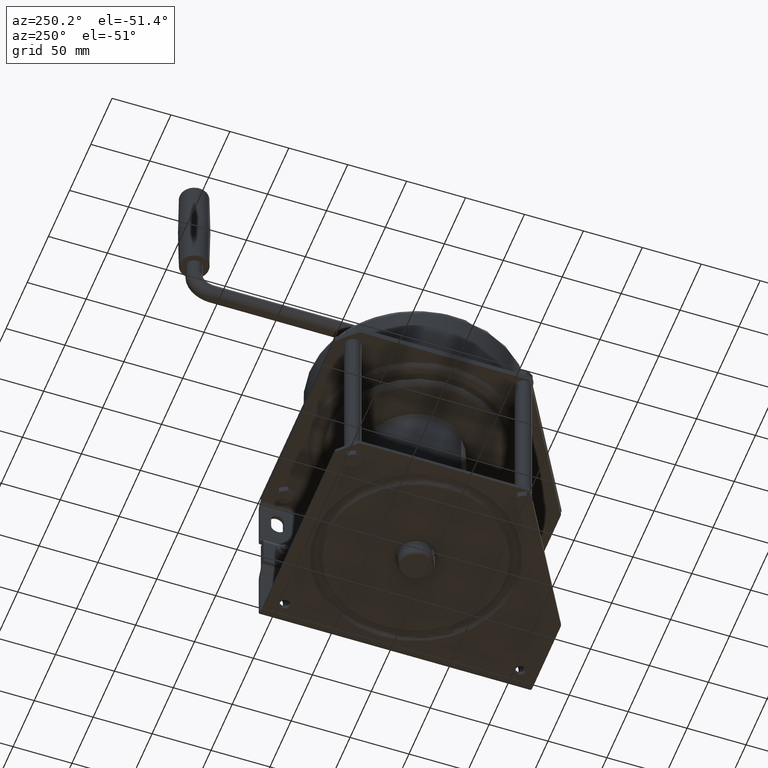
[diagram: clean part render]
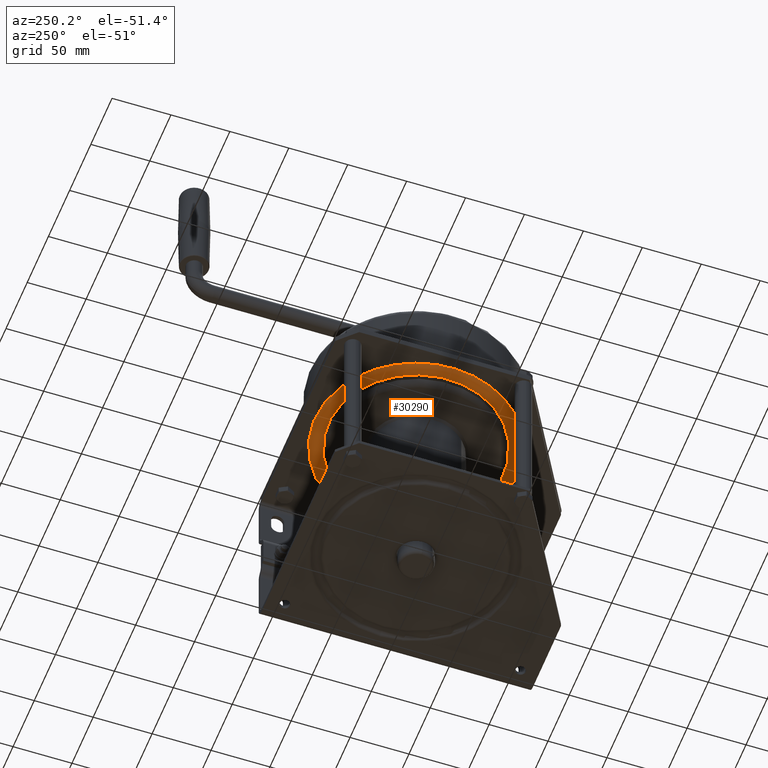
[diagram: same view with one face highlighted and labeled with its STEP entity id]
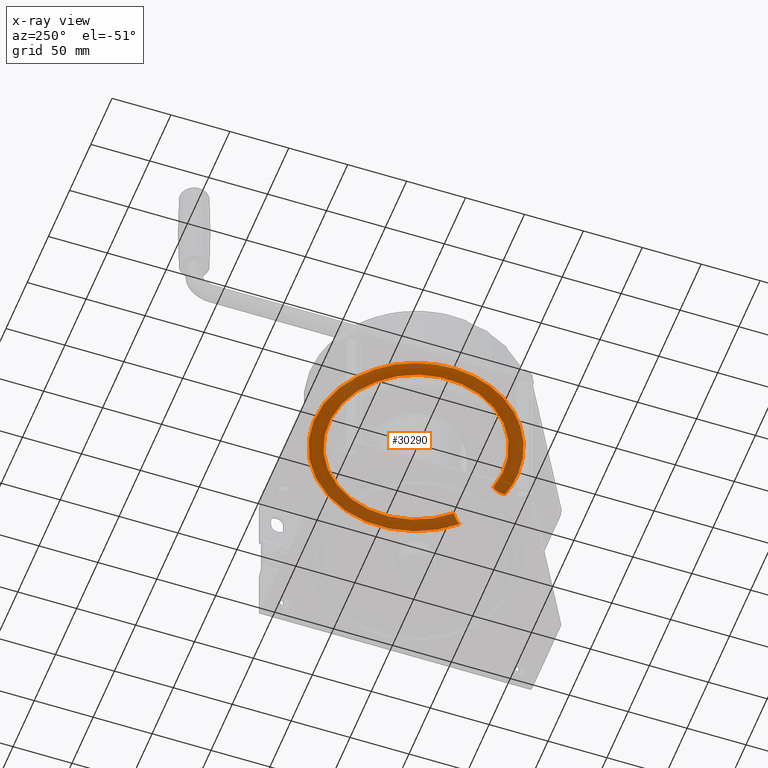
[diagram: x-ray of the same camera — body ghosted, the highlighted face saturated]
A machine part, auxiliary view. The second image highlights one B-rep face of the part: STEP entity #30290.
The next image is the same camera in x-ray: the body ghosted, the highlighted face saturated — about 39% of this face is hidden behind the body in this view.
In plain terms, the highlighted toroidal blend (fillet) surface has major radius 80 mm and minor (blend) radius 8 mm.
Its self-contained STEP definition (entity closure, byte-faithful):
#11730=CARTESIAN_POINT('',(-17.7310738179768,141.666664881784,
-71.8826067004219));
#11740=VERTEX_POINT('',#11730);
#11770=CARTESIAN_POINT('',(-17.4494110364851,143.251790071359,
-70.8142183877332));
#11780=CARTESIAN_POINT('',(-17.4797095990483,143.027668180225,
-70.9291679604591));
#11790=CARTESIAN_POINT('',(-17.5127375604239,142.809125787046,
-71.0544650633126));
#11800=CARTESIAN_POINT('',(-17.641144159681,142.045076566166,
-71.5415585136949));
#11810=CARTESIAN_POINT('',(-17.7509839322219,141.540439426602,
-71.9581526235615));
#11820=CARTESIAN_POINT('',(-17.9998614668436,140.648677941406,
-72.9018127497022));
#11830=CARTESIAN_POINT('',(-18.1379403264259,140.264988910131,
-73.4252414964462));
#11840=CARTESIAN_POINT('',(-18.4350968509748,139.639518396552,
-74.5513529116761));
#11850=CARTESIAN_POINT('',(-18.5930296544494,139.400147062889,
-75.1496960906125));
#11860=CARTESIAN_POINT('',(-18.9204040818879,139.079063886052,
-76.3895995869877));
#11870=CARTESIAN_POINT('',(-19.0885842550462,138.998588986126,
-77.0263820600299));
#11880=CARTESIAN_POINT('',(-19.4262481365162,139.001448458459,
-78.304509295463));
#11890=CARTESIAN_POINT('',(-19.5944306729645,139.08477266771,
-78.9409292634706));
#11900=CARTESIAN_POINT('',(-19.9217967249815,139.411408773584,
-80.1793962015438));
#11910=CARTESIAN_POINT('',(-20.0797186413641,139.653462951148,
-80.7766712000824));
#11920=CARTESIAN_POINT('',(-20.3767891384021,140.283977637425,
-81.8999788823179));
#11930=CARTESIAN_POINT('',(-20.5147936430678,140.670003709072,
-82.4216864849412));
#11940=CARTESIAN_POINT('',(-20.7634055817012,141.565970629898,
-83.3613785624261));
#11950=CARTESIAN_POINT('',(-20.8730547589428,142.072460441627,
-83.7757420027862));
#11960=CARTESIAN_POINT('',(-20.9994629999071,142.829001509947,
-84.2533869875857));
#11970=CARTESIAN_POINT('',(-21.0309918189111,143.0378719962,
-84.3725156453458));
#11980=CARTESIAN_POINT('',(-21.0600252851529,143.251815989969,
-84.4822117488593));
#11990=B_SPLINE_CURVE_WITH_KNOTS('',3,(#11770,#11780,#11790,#11800,
#11810,#11820,#11830,#11840,#11850,#11860,#11870,#11880,#11890,#11900,
#11910,#11920,#11930,#11940,#11950,#11960,#11970,#11980),.UNSPECIFIED.,
.F.,.F.,(4,2,2,2,2,2,2,2,2,2,4),(2.89891703597038,3.58902922649579,
5.38386186552505,7.17868409120651,8.97350843534033,10.7683302842385,
12.5631604119399,14.357997235744,16.1527661252999,17.9475444589209,
18.6062883887698),.UNSPECIFIED.);
#12000=CARTESIAN_POINT('',(-20.7773640004484,141.666668661917,
-83.4141035381215));
#12010=VERTEX_POINT('',#12000);
#12020=EDGE_CURVE('',#11740,#12010,#11990,.T.);
#19070=CARTESIAN_POINT('',(-61.8500506245672,141.666668546665,
-59.7007767444537));
#19080=VERTEX_POINT('',#19070);
#19110=CARTESIAN_POINT('',(-52.6022065546735,143.251790071359,
-50.5187424325393));
#19120=CARTESIAN_POINT('',(-52.6866065235336,143.027668180207,
-50.6024565437868));
#19130=CARTESIAN_POINT('',(-52.7786030169456,142.809125787011,
-50.6937081488081));
#19140=CARTESIAN_POINT('',(-53.1362350193775,142.045076566117,
-51.0484582509817));
#19150=CARTESIAN_POINT('',(-53.4420962153212,141.540439426557,
-51.3518793392841));
#19160=CARTESIAN_POINT('',(-54.1348910897916,140.648677941368,
-52.039243669773));
#19170=CARTESIAN_POINT('',(-54.5191542517538,140.264988910097,
-52.4205378432708));
#19180=CARTESIAN_POINT('',(-55.3458170825571,139.639518396532,
-53.2409386500425));
#19190=CARTESIAN_POINT('',(-55.7850310739539,139.400147062877,
-53.6768840594046));
#19200=CARTESIAN_POINT('',(-56.6951317863233,139.079063886049,
-54.5803503782901));
#19210=CARTESIAN_POINT('',(-57.1625114980761,138.998588986126,
-55.044389917172));
#19220=CARTESIAN_POINT('',(-58.100570212532,139.001448458459,
-55.9758790342188));
#19230=CARTESIAN_POINT('',(-58.5676348041221,139.084772667725,
-56.4397393673033));
#19240=CARTESIAN_POINT('',(-59.4764956083128,139.41140877366,
-57.3424801538034));
#19250=CARTESIAN_POINT('',(-59.9147899719369,139.65346295127,
-57.7778820445099));
#19260=CARTESIAN_POINT('',(-60.7390677125182,140.28397763763,
-58.5968064827954));
#19270=CARTESIAN_POINT('',(-61.1218774973918,140.670003709303,
-58.9771756909716));
#19280=CARTESIAN_POINT('',(-61.8113687388823,141.565970630175,
-59.662325984225));
#19290=CARTESIAN_POINT('',(-62.115393415996,142.072460441924,
-59.9644666773837));
#19300=CARTESIAN_POINT('',(-62.4658419862668,142.829001510162,
-60.3127619176331));
#19310=CARTESIAN_POINT('',(-62.5532460206554,143.037871996311,
-60.3996310046738));
#19320=CARTESIAN_POINT('',(-62.6337288998319,143.251815989969,
-60.4796227757148));
#19330=B_SPLINE_CURVE_WITH_KNOTS('',3,(#19110,#19120,#19130,#19140,
#19150,#19160,#19170,#19180,#19190,#19200,#19210,#19220,#19230,#19240,
#19250,#19260,#19270,#19280,#19290,#19300,#19310,#19320),.UNSPECIFIED.,
.F.,.F.,(4,2,2,2,2,2,2,2,2,2,4),(2.89891703591418,3.58902922649574,
5.38386186552498,7.17868409120644,8.97350843531208,10.7683302841821,
12.5631604120536,14.3579972360276,16.1527661255836,17.9475444592046,
18.6062883887144),.UNSPECIFIED.);
#19340=CARTESIAN_POINT('',(-53.3866265194609,141.666664983133,
-51.2968636491051));
#19350=VERTEX_POINT('',#19340);
#19360=EDGE_CURVE('',#19350,#19080,#19330,.T.);
#25740=CARTESIAN_POINT('',(-53.3866265194609,141.666664983133,
-51.2968636491051));
#25750=CARTESIAN_POINT('',(-53.4055790043419,141.666664983935,
-51.2771390653176));
#25760=CARTESIAN_POINT('',(-53.4244778305635,141.666666666667,
-51.2574460613226));
#25770=CARTESIAN_POINT('',(-55.7721436525182,141.666666666667,
-48.8087124291369));
#25780=CARTESIAN_POINT('',(-57.9347485043187,141.666666666667,
-46.2215353729457));
#25790=CARTESIAN_POINT('',(-63.5077350658664,141.666666666667,
-38.5443365883381));
#25800=CARTESIAN_POINT('',(-66.473256061125,141.666666666667,
-33.1693310885746));
#25810=CARTESIAN_POINT('',(-71.014755494827,141.666666666667,
-21.8129043971983));
#25820=CARTESIAN_POINT('',(-72.5732439058237,141.666666666667,
-15.8752185880133));
#25830=CARTESIAN_POINT('',(-74.1944646316315,141.666666666667,
-3.75229453227779));
#25840=CARTESIAN_POINT('',(-74.2509533708559,141.666666666667,
2.38625643013575));
#25850=CARTESIAN_POINT('',(-72.8531056836585,141.666666666667,
14.5369628353748));
#25860=CARTESIAN_POINT('',(-71.4041525881767,141.666666666667,
20.5023239998728));
#25870=CARTESIAN_POINT('',(-67.0724148715279,141.666666666667,
31.9404048116648));
#25880=CARTESIAN_POINT('',(-64.2063124524975,141.666666666667,
37.3690746136914));
#25890=CARTESIAN_POINT('',(-57.2046408012302,141.666666666667,
47.3975460022311));
#25900=CARTESIAN_POINT('',(-53.0960361059574,141.666666666667,
51.9587263707093));
#25910=CARTESIAN_POINT('',(-43.8510800605702,141.666666666667,
59.9664995956312));
#25920=CARTESIAN_POINT('',(-38.7503324878727,141.666666666667,
63.3822532599678));
#25930=CARTESIAN_POINT('',(-27.8254369815711,141.666666666667,
68.8813715965062));
#25940=CARTESIAN_POINT('',(-22.0433625360402,141.666666666667,
70.9435583004972));
#25950=CARTESIAN_POINT('',(-10.1042402557254,141.666666666667,
73.5989308691772));
#25960=CARTESIAN_POINT('',(-3.9931718555799,141.666666666667,
74.1818904771451));
#25970=CARTESIAN_POINT('',(8.23266221522825,141.666666666667,
73.8317111347103));
#25980=CARTESIAN_POINT('',(14.300344279128,141.666666666667,
72.8999207799828));
#25990=CARTESIAN_POINT('',(26.0679042644669,141.666666666667,
69.5655278387792));
#26000=CARTESIAN_POINT('',(31.722463464607,141.666666666668,
67.175766523099));
#26010=CARTESIAN_POINT('',(37.01857603,141.666666666668,64.1180545078109
));
#26020=CARTESIAN_POINT('',(40.6928436478808,141.666666666668,
61.9967151095526));
#26030=CARTESIAN_POINT('',(44.1779692337604,141.666666666667,
59.5634723879239));
#26040=CARTESIAN_POINT('',(50.6929661085473,141.666666666667,
54.1269193252647));
#26050=CARTESIAN_POINT('',(53.7107828302228,141.666666666667,
51.1336681286476));
#26060=CARTESIAN_POINT('',(60.4119798736627,141.666666666667,
43.2352978939147));
#26070=CARTESIAN_POINT('',(63.7753715804122,141.666666666667,
38.0998723883917));
#26080=CARTESIAN_POINT('',(69.1624349817782,141.666666666667,
27.1192898805016));
#26090=CARTESIAN_POINT('',(71.1653602493342,141.666666666667,
21.3164208255949));
#26100=CARTESIAN_POINT('',(73.6984506567894,141.666666666667,
9.35075756397089));
#26110=CARTESIAN_POINT('',(74.2188604677717,141.666666666667,
3.23404500537859));
#26120=CARTESIAN_POINT('',(73.7436230483259,141.666666666667,
-8.98756674177154));
#26130=CARTESIAN_POINT('',(72.749806031824,141.666666666667,
-15.0453985843963));
#26140=CARTESIAN_POINT('',(69.2951995594292,141.666666666667,
-26.7782302299884));
#26150=CARTESIAN_POINT('',(66.8477143355198,141.666666666667,
-32.4080450559444));
#26160=CARTESIAN_POINT('',(60.6242465771009,141.666666666667,
-42.9371520153613));
#26170=CARTESIAN_POINT('',(56.8722315941672,141.666666666667,
-47.7958949045918));
#26180=CARTESIAN_POINT('',(48.2591319383173,141.666666666667,
-56.4796820174428));
#26190=CARTESIAN_POINT('',(43.4312176646451,141.666666666667,
-60.2712836133228));
#26200=CARTESIAN_POINT('',(32.9533286337599,141.666666666667,
-66.580600989979));
#26210=CARTESIAN_POINT('',(27.3437058724922,141.666666666667,
-69.0740185988192));
#26220=CARTESIAN_POINT('',(15.6395016428942,141.666666666667,
-72.6244055713593));
#26230=CARTESIAN_POINT('',(9.58999490290132,141.666666666667,
-73.6677018373297));
#26240=CARTESIAN_POINT('',(-2.62732436333692,141.666666666667,
-74.2428142174123));
#26250=CARTESIAN_POINT('',(-8.74808607466722,141.666666666667,
-73.772415483442));
#26260=CARTESIAN_POINT('',(-15.715969111468,141.666666666667,
-72.3567402617258));
#26270=CARTESIAN_POINT('',(-16.6862656493447,141.666666666667,
-72.139143648174));
#26280=CARTESIAN_POINT('',(-17.6780109046521,141.666666666667,
-71.8956785847278));
#26290=CARTESIAN_POINT('',(-17.7045152343861,141.666664882058,
-71.8891578288474));
#26300=CARTESIAN_POINT('',(-17.7310738179768,141.666664881784,
-71.8826067004219));
#26310=B_SPLINE_CURVE_WITH_KNOTS('',3,(#25740,#25750,#25760,#25770,
#25780,#25790,#25800,#25810,#25820,#25830,#25840,#25850,#25860,#25870,
#25880,#25890,#25900,#25910,#25920,#25930,#25940,#25950,#25960,#25970,
#25980,#25990,#26000,#26010,#26020,#26030,#26040,#26050,#26060,#26070,
#26080,#26090,#26100,#26110,#26120,#26130,#26140,#26150,#26160,#26170,
#26180,#26190,#26200,#26210,#26220,#26230,#26240,#26250,#26260,#26270,
#26280,#26290,#26300),.UNSPECIFIED.,.F.,.F.,(4,2,2,2,2,2,2,2,2,2,2,2,2,3
,2,2,2,2,2,2,2,2,2,2,2,2,2,4),(0.,0.0819332722406013,10.1386765569284,
28.3813745226905,46.6240724884525,64.8667704542146,83.1094684199767,
101.352166385739,119.594864351501,137.837562317263,156.080260283018,
174.322958248773,192.56565621404,210.808354179313,223.464534267814,
236.12071435631,254.363412322072,272.606110287834,290.848808253596,
309.091506219358,327.33420418512,345.576902150882,363.819600116644,
382.062298082406,400.304996048168,418.54769401393,421.515296849799,
421.597161795074),.UNSPECIFIED.);
#26320=EDGE_CURVE('',#19350,#11740,#26310,.T.);
#29590=CARTESIAN_POINT('',(0.,147.,0.));
#29600=DIRECTION('',(0.,1.,0.));
#29610=DIRECTION('',(1.,0.,0.));
#29620=AXIS2_PLACEMENT_3D('',#29590,#29600,#29610);
#29630=TOROIDAL_SURFACE('',#29620,80.,8.);
#29640=ORIENTED_EDGE('',*,*,#12020,.T.);
#29650=ORIENTED_EDGE('',*,*,#26320,.T.);
#29660=ORIENTED_EDGE('',*,*,#19360,.F.);
#29670=CARTESIAN_POINT('',(-61.8500506245672,141.666668546665,
-59.7007767444537));
#29680=CARTESIAN_POINT('',(-61.8688707113706,141.666668545755,
-59.6812791188783));
#29690=CARTESIAN_POINT('',(-61.8876286570385,141.666666666667,
-59.6618248737851));
#29700=CARTESIAN_POINT('',(-64.6657359402651,141.666666666667,
-56.7782506767159));
#29710=CARTESIAN_POINT('',(-67.225523048569,141.666666666667,
-53.7235144454945));
#29720=CARTESIAN_POINT('',(-73.7373821249944,141.666666666667,
-44.7529497315704));
#29730=CARTESIAN_POINT('',(-77.1805808870724,141.666666666667,
-38.5121534876717));
#29740=CARTESIAN_POINT('',(-82.453612253822,141.666666666667,
-25.3264655769469));
#29750=CARTESIAN_POINT('',(-84.2631375867042,141.666666666667,
-18.4323540647437));
#29760=CARTESIAN_POINT('',(-86.1454999780414,141.666666666667,
-4.35670355397023));
#29770=CARTESIAN_POINT('',(-86.2110877633501,141.666666666667,
2.77062790425829));
#29780=CARTESIAN_POINT('',(-84.5880787068772,141.666666666667,
16.8785358666872));
#29790=CARTESIAN_POINT('',(-82.9057323278247,141.666666666667,
23.8047806020343));
#29800=CARTESIAN_POINT('',(-77.8762505012661,141.666666666667,
37.085275247569));
#29810=CARTESIAN_POINT('',(-74.5484843780271,141.666666666667,
43.388379887511));
#29820=CARTESIAN_POINT('',(-66.4190031804692,141.666666666667,
55.0322091945865));
#29830=CARTESIAN_POINT('',(-61.6485960147715,141.666666666667,
60.3280916466898));
#29840=CARTESIAN_POINT('',(-50.9144884928508,141.666666666667,
69.6257344222326));
#29850=CARTESIAN_POINT('',(-44.9921268702147,141.666666666667,
73.591688063384));
#29860=CARTESIAN_POINT('',(-32.30747997202,141.666666666667,
79.976588888133));
#29870=CARTESIAN_POINT('',(-25.5940452634692,141.666666666667,
82.3709468160673));
#29880=CARTESIAN_POINT('',(-11.7318028001448,141.666666666667,
85.4540393157774));
#29890=CARTESIAN_POINT('',(-4.63638071781184,141.666666666667,
86.1309004142149));
#29900=CARTESIAN_POINT('',(9.55875626124258,141.666666666667,
85.7243151680632));
#29910=CARTESIAN_POINT('',(16.6038034565006,141.666666666667,
84.6424346475996));
#29920=CARTESIAN_POINT('',(30.2668488495381,141.666666666667,
80.770947085041));
#29930=CARTESIAN_POINT('',(36.8322285141039,141.666666666668,
77.996249749461));
#29940=CARTESIAN_POINT('',(42.9814239700035,141.666666666668,
74.4460100976973));
#29950=CARTESIAN_POINT('',(47.2475322663267,141.666666666668,
71.9829713244228));
#29960=CARTESIAN_POINT('',(51.294032064814,141.666666666667,
69.1577887188704));
#29970=CARTESIAN_POINT('',(58.8584462847747,141.666666666667,
62.8455310017536));
#29980=CARTESIAN_POINT('',(62.36236442327,141.666666666667,
59.3701353332578));
#29990=CARTESIAN_POINT('',(70.1429714082025,141.666666666667,
50.1995178697166));
#30000=CARTESIAN_POINT('',(74.0481287751655,141.666666666667,
44.2368924905493));
#30010=CARTESIAN_POINT('',(80.3029251714943,141.666666666667,
31.4875886854692));
#30020=CARTESIAN_POINT('',(82.6284759977804,141.666666666667,
24.7500098304653));
#30030=CARTESIAN_POINT('',(85.5695894702664,141.666666666667,
10.856951239366));
#30040=CARTESIAN_POINT('',(86.1738254266564,141.666666666667,
3.75497585345812));
#30050=CARTESIAN_POINT('',(85.6220381007559,141.666666666667,
-10.4352586837414));
#30060=CARTESIAN_POINT('',(84.4681398381018,141.666666666667,
-17.4688690136132));
#30070=CARTESIAN_POINT('',(80.4570750856002,141.666666666667,
-31.0915921270365));
#30080=CARTESIAN_POINT('',(77.6153558359508,141.666666666667,
-37.6282416647743));
#30090=CARTESIAN_POINT('',(70.3894294219399,141.666666666667,
-49.8533475102489));
#30100=CARTESIAN_POINT('',(66.0330504348478,141.666666666667,
-55.4947230157314));
#30110=CARTESIAN_POINT('',(56.0325769495818,141.666666666667,
-65.5772700919542));
#30120=CARTESIAN_POINT('',(50.4269958451209,141.666666666667,
-69.979612190695));
#30130=CARTESIAN_POINT('',(38.2613579660195,141.666666666667,
-77.3052166345844));
#30140=CARTESIAN_POINT('',(31.748152973157,141.666666666667,
-80.2002669267187));
#30150=CARTESIAN_POINT('',(18.1586684982438,141.666666666667,
-84.3225402291392));
#30160=CARTESIAN_POINT('',(11.1347242547905,141.666666666667,
-85.533887717639));
#30170=CARTESIAN_POINT('',(-3.05052638091517,141.666666666667,
-86.2016375779674));
#30180=CARTESIAN_POINT('',(-10.1572031455349,141.666666666667,
-85.6554683402306));
#30190=CARTESIAN_POINT('',(-18.3161121157482,141.666666666667,
-83.9978105965914));
#30200=CARTESIAN_POINT('',(-19.5106922589406,141.666666666667,
-83.7283810408551));
#30210=CARTESIAN_POINT('',(-20.7248411621297,141.666666666667,
-83.4271716343154));
#30220=CARTESIAN_POINT('',(-20.7510682182051,141.66666866181,
-83.4206534740186));
#30230=CARTESIAN_POINT('',(-20.7773640004484,141.666668661917,
-83.4141035381215));
#30240=B_SPLINE_CURVE_WITH_KNOTS('',3,(#29670,#29680,#29690,#29700,
#29710,#29720,#29730,#29740,#29750,#29760,#29770,#29780,#29790,#29800,
#29810,#29820,#29830,#29840,#29850,#29860,#29870,#29880,#29890,#29900,
#29910,#29920,#29930,#29940,#29950,#29960,#29970,#29980,#29990,#30000,
#30010,#30020,#30030,#30040,#30050,#30060,#30070,#30080,#30090,#30100,
#30110,#30120,#30130,#30140,#30150,#30160,#30170,#30180,#30190,#30200,
#30210,#30220,#30230),.UNSPECIFIED.,.F.,.F.,(4,2,2,2,2,2,2,2,2,2,2,2,2,3
,2,2,2,2,2,2,2,2,2,2,2,2,2,4),(0.,0.0819773468217562,12.0797234517522,
33.4603542563259,54.8409850608996,76.2216158654732,97.6022466700469,
118.982877474621,140.363508279194,161.744139083768,183.124769888342,
204.505400692916,225.886031491419,247.266662289923,262.099836334278,
276.933010378634,298.313641183207,319.694271987781,341.074902792355,
362.455533596928,383.836164401502,405.216795206076,426.597426010649,
447.978056815223,469.358687619796,490.73931842437,494.428346196539,
494.510259831471),.UNSPECIFIED.);
#30250=EDGE_CURVE('',#19080,#12010,#30240,.T.);
#30260=ORIENTED_EDGE('',*,*,#30250,.F.);
#30270=EDGE_LOOP('',(#30260,#29660,#29650,#29640));
#30280=FACE_OUTER_BOUND('',#30270,.T.);
#30290=ADVANCED_FACE('',(#30280),#29630,.T.);